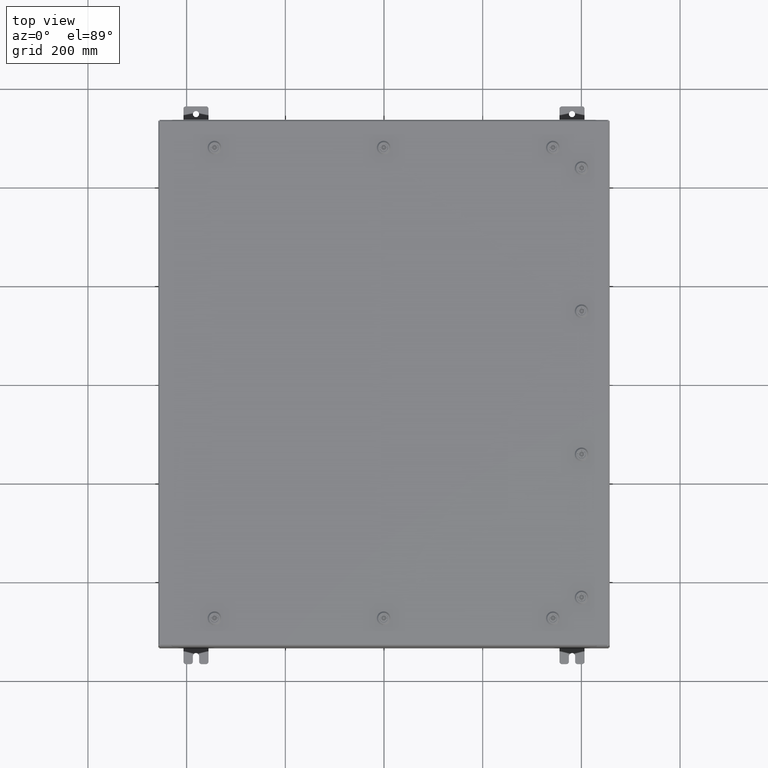
[diagram: clean part render]
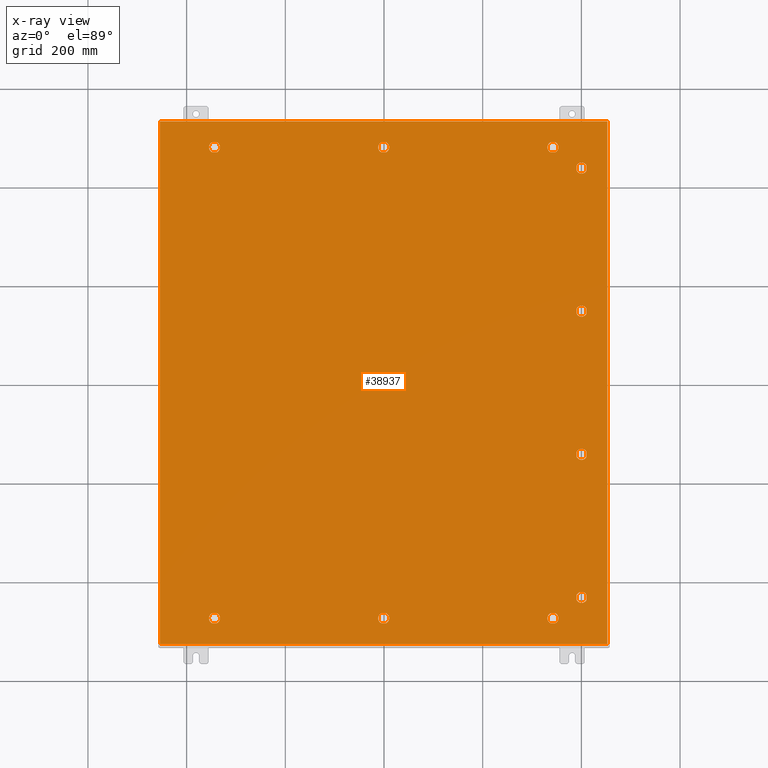
[diagram: x-ray — body ghosted, one internal face saturated and labeled with its STEP entity id]
A machine part, top view, then the same camera in x-ray: the body is ghosted and one INTERNAL B-rep face — a face not visible from any outside direction — is saturated and labeled: STEP entity #38937.
In plain terms, the highlighted planar face has unit normal (0, 0, -1).
Its self-contained STEP definition (entity closure, byte-faithful):
#66 = LINE ( 'NONE', #26170, #40813 ) ;
#161 = VERTEX_POINT ( 'NONE', #5360 ) ;
#405 = CARTESIAN_POINT ( 'NONE',  ( -13.49999999999998600, -18.78780000000000400, -0.07470000000000003000 ) ) ;
#1058 = EDGE_CURVE ( 'NONE', #16511, #25870, #48146, .T. ) ;
#1070 = EDGE_CURVE ( 'NONE', #35272, #41844, #18265, .T. ) ;
#1144 = CARTESIAN_POINT ( 'NONE',  ( 15.39280000000000800, 5.510047624732132800, -0.07470000000000003000 ) ) ;
#1437 = PLANE ( 'NONE',  #45311 ) ;
#1460 = FACE_BOUND ( 'NONE', #19633, .T. ) ;
#1720 = EDGE_CURVE ( 'NONE', #15057, #55109, #14089, .T. ) ;
#1851 = DIRECTION ( 'NONE',  ( -1.000000000000000000, 2.469467112916857400E-015, 0.0000000000000000000 ) ) ;
#2109 = ORIENTED_EDGE ( 'NONE', *, *, #1070, .T. ) ;
#2178 = VECTOR ( 'NONE', #49123, 39.37007874015748100 ) ;
#2490 = CARTESIAN_POINT ( 'NONE',  ( 15.78780000000000400, -5.710500000000016600, -0.07470000000000003000 ) ) ;
#2506 = DIRECTION ( 'NONE',  ( -1.000000000000000000, 0.0000000000000000000, 0.0000000000000000000 ) ) ;
#2634 = DIRECTION ( 'NONE',  ( -1.000000000000000000, 0.0000000000000000000, 0.0000000000000000000 ) ) ;
#2703 = CARTESIAN_POINT ( 'NONE',  ( -0.1994523752678657700, 19.18279999999999300, -0.07470000000000003000 ) ) ;
#2860 = DIRECTION ( 'NONE',  ( -0.0000000000000000000, -0.0000000000000000000, 1.000000000000000000 ) ) ;
#3018 = EDGE_CURVE ( 'NONE', #9223, #26105, #62154, .T. ) ;
#3052 = ORIENTED_EDGE ( 'NONE', *, *, #64039, .T. ) ;
#3156 = FACE_BOUND ( 'NONE', #57944, .T. ) ;
#3200 = CARTESIAN_POINT ( 'NONE',  ( 13.69945237526786900, 18.39280000000000500, -0.07470000000000003000 ) ) ;
#3204 = VECTOR ( 'NONE', #19536, 39.37007874015748100 ) ;
#3264 = DIRECTION ( 'NONE',  ( 0.0000000000000000000, -1.000000000000000000, 0.0000000000000000000 ) ) ;
#3603 = VECTOR ( 'NONE', #55057, 39.37007874015748100 ) ;
#3642 = CARTESIAN_POINT ( 'NONE',  ( 15.78780000000000400, -17.13050000000001900, -0.07470000000000003000 ) ) ;
#3845 = LINE ( 'NONE', #38474, #2178 ) ;
#4051 = VECTOR ( 'NONE', #66844, 39.37007874015748100 ) ;
#4252 = EDGE_CURVE ( 'NONE', #61828, #33292, #66209, .T. ) ;
#4639 = DIRECTION ( 'NONE',  ( -0.0000000000000000000, -0.0000000000000000000, 1.000000000000000000 ) ) ;
#4670 = EDGE_CURVE ( 'NONE', #34189, #38548, #26702, .T. ) ;
#5013 = EDGE_LOOP ( 'NONE', ( #26809, #65879, #44475, #34656 ) ) ;
#5360 = CARTESIAN_POINT ( 'NONE',  ( 13.69945237526786700, 19.18279999999999700, -0.07470000000000003000 ) ) ;
#5600 = LINE ( 'NONE', #35862, #44606 ) ;
#5649 = EDGE_LOOP ( 'NONE', ( #28143, #27360, #38695, #23363 ) ) ;
#5790 = VECTOR ( 'NONE', #11113, 39.37007874015748100 ) ;
#5804 = DIRECTION ( 'NONE',  ( -1.000000000000000000, 0.0000000000000000000, 0.0000000000000000000 ) ) ;
#6293 = CARTESIAN_POINT ( 'NONE',  ( 16.18280000000000000, 16.93004762473213300, -0.07470000000000003000 ) ) ;
#6340 = ORIENTED_EDGE ( 'NONE', *, *, #48176, .T. ) ;
#6526 = ORIENTED_EDGE ( 'NONE', *, *, #53477, .T. ) ;
#6733 = LINE ( 'NONE', #20981, #47363 ) ;
#6754 = ORIENTED_EDGE ( 'NONE', *, *, #57672, .T. ) ;
#6817 = AXIS2_PLACEMENT_3D ( 'NONE', #40649, #8861, #45978 ) ;
#7373 = DIRECTION ( 'NONE',  ( -1.000000000000000000, 0.0000000000000000000, 0.0000000000000000000 ) ) ;
#7436 = CARTESIAN_POINT ( 'NONE',  ( -17.84980000000000200, -20.84980000000000500, -0.07469999999999804600 ) ) ;
#7461 = VERTEX_POINT ( 'NONE', #25992 ) ;
#7508 = LINE ( 'NONE', #56351, #18263 ) ;
#7807 = DIRECTION ( 'NONE',  ( -1.000000000000000000, 0.0000000000000000000, 0.0000000000000000000 ) ) ;
#7835 = ORIENTED_EDGE ( 'NONE', *, *, #37904, .T. ) ;
#7992 = AXIS2_PLACEMENT_3D ( 'NONE', #51718, #19958, #57063 ) ;
#7999 = EDGE_LOOP ( 'NONE', ( #56794, #63628, #6526, #67259, #49542 ) ) ;
#8388 = EDGE_CURVE ( 'NONE', #28071, #32484, #42237, .T. ) ;
#8718 = DIRECTION ( 'NONE',  ( 1.095739467627838000E-014, -1.000000000000000000, 0.0000000000000000000 ) ) ;
#8861 = DIRECTION ( 'NONE',  ( -0.0000000000000000000, -0.0000000000000000000, 1.000000000000000000 ) ) ;
#8959 = DIRECTION ( 'NONE',  ( -1.000000000000000000, 0.0000000000000000000, 0.0000000000000000000 ) ) ;
#9223 = VERTEX_POINT ( 'NONE', #18270 ) ;
#9495 = CARTESIAN_POINT ( 'NONE',  ( 16.18280000000000000, -17.32995237526790400, -0.07470000000000003000 ) ) ;
#9794 = EDGE_CURVE ( 'NONE', #68741, #20518, #37967, .T. ) ;
#10039 = EDGE_CURVE ( 'NONE', #60354, #33053, #43781, .T. ) ;
#10676 = ORIENTED_EDGE ( 'NONE', *, *, #38243, .T. ) ;
#10846 = CARTESIAN_POINT ( 'NONE',  ( 0.4425000000000126100, -18.78779999999999700, -0.07470000000000003000 ) ) ;
#11113 = DIRECTION ( 'NONE',  ( -1.000000000000000000, 0.0000000000000000000, 0.0000000000000000000 ) ) ;
#11150 = CARTESIAN_POINT ( 'NONE',  ( -0.1994523752678689600, 18.39280000000000100, -0.07470000000000003000 ) ) ;
#11406 = VECTOR ( 'NONE', #49795, 39.37007874015748100 ) ;
#11537 = DIRECTION ( 'NONE',  ( -0.0000000000000000000, -0.0000000000000000000, 1.000000000000000000 ) ) ;
#12314 = DIRECTION ( 'NONE',  ( 1.000000000000000000, -0.0000000000000000000, -0.0000000000000000000 ) ) ;
#12603 = AXIS2_PLACEMENT_3D ( 'NONE', #66176, #34382, #2634 ) ;
#12692 = CARTESIAN_POINT ( 'NONE',  ( 0.1994523752678995500, 18.39280000000000100, -0.07470000000000003000 ) ) ;
#12697 = CARTESIAN_POINT ( 'NONE',  ( 13.94249999999998300, 18.78780000000000100, -0.07470000000000003000 ) ) ;
#12916 = CARTESIAN_POINT ( 'NONE',  ( 15.39280000000001200, -5.909952375267908000, -0.07470000000000000300 ) ) ;
#12958 = CARTESIAN_POINT ( 'NONE',  ( 13.94249999999998500, -18.78780000000000100, -0.07470000000000003000 ) ) ;
#13171 = CARTESIAN_POINT ( 'NONE',  ( 16.18280000000000000, -5.511047624732134100, -0.07470000000000003000 ) ) ;
#13567 = EDGE_LOOP ( 'NONE', ( #6754, #50351, #51552, #42860, #31877 ) ) ;
#13720 = CARTESIAN_POINT ( 'NONE',  ( -13.49999999999998600, -18.78780000000000400, -0.07470000000000003000 ) ) ;
#14043 = LINE ( 'NONE', #49445, #67169 ) ;
#14089 = LINE ( 'NONE', #7436, #26515 ) ;
#14210 = CIRCLE ( 'NONE', #38345, 0.4424999999999973400 ) ;
#14299 = EDGE_CURVE ( 'NONE', #47887, #67637, #30196, .T. ) ;
#14702 = CARTESIAN_POINT ( 'NONE',  ( -0.1994523752678657700, -19.18279999999999300, -0.07470000000000003000 ) ) ;
#15035 = CARTESIAN_POINT ( 'NONE',  ( 0.4425000000000126100, 18.78779999999999700, -0.07470000000000003000 ) ) ;
#15057 = VERTEX_POINT ( 'NONE', #63403 ) ;
#15262 = VERTEX_POINT ( 'NONE', #43936 ) ;
#15269 = DIRECTION ( 'NONE',  ( -0.0000000000000000000, -0.0000000000000000000, 1.000000000000000000 ) ) ;
#15373 = VECTOR ( 'NONE', #64178, 39.37007874015748100 ) ;
#15424 = ORIENTED_EDGE ( 'NONE', *, *, #24853, .T. ) ;
#15546 = FACE_BOUND ( 'NONE', #38149, .T. ) ;
#15747 = ORIENTED_EDGE ( 'NONE', *, *, #9794, .T. ) ;
#15882 = CARTESIAN_POINT ( 'NONE',  ( 17.84979999999999500, 20.84980000000000200, -0.07470000000000000300 ) ) ;
#15960 = CIRCLE ( 'NONE', #55651, 0.4424999999999983400 ) ;
#16007 = LINE ( 'NONE', #23061, #3603 ) ;
#16301 = CARTESIAN_POINT ( 'NONE',  ( -13.49999999999998600, -18.78780000000000400, -0.07470000000000003000 ) ) ;
#16511 = VERTEX_POINT ( 'NONE', #43716 ) ;
#16651 = DIRECTION ( 'NONE',  ( -0.0000000000000000000, -0.0000000000000000000, 1.000000000000000000 ) ) ;
#16898 = DIRECTION ( 'NONE',  ( -0.0000000000000000000, -0.0000000000000000000, 1.000000000000000000 ) ) ;
#17136 = DIRECTION ( 'NONE',  ( -5.478697338139220100E-015, 1.000000000000000000, 0.0000000000000000000 ) ) ;
#17246 = FACE_BOUND ( 'NONE', #24957, .T. ) ;
#17348 = VECTOR ( 'NONE', #8718, 39.37007874015748100 ) ;
#17456 = DIRECTION ( 'NONE',  ( -1.000000000000000000, 0.0000000000000000000, -0.0000000000000000000 ) ) ;
#17544 = ORIENTED_EDGE ( 'NONE', *, *, #62018, .T. ) ;
#17956 = CIRCLE ( 'NONE', #48938, 0.4424999999999961700 ) ;
#18263 = VECTOR ( 'NONE', #3264, 39.37007874015748100 ) ;
#18265 = CIRCLE ( 'NONE', #20304, 0.4424999999999983400 ) ;
#18270 = CARTESIAN_POINT ( 'NONE',  ( 15.39280000000000800, -5.511047624732134100, -0.07470000000000003000 ) ) ;
#18288 = ORIENTED_EDGE ( 'NONE', *, *, #32300, .T. ) ;
#18391 = AXIS2_PLACEMENT_3D ( 'NONE', #51376, #19597, #56717 ) ;
#18646 = CARTESIAN_POINT ( 'NONE',  ( 15.39280000000000800, -16.93104762473213800, -0.07470000000000003000 ) ) ;
#18711 = VERTEX_POINT ( 'NONE', #67174 ) ;
#18902 = FACE_BOUND ( 'NONE', #5649, .T. ) ;
#19002 = DIRECTION ( 'NONE',  ( -0.0000000000000000000, -0.0000000000000000000, 1.000000000000000000 ) ) ;
#19003 = LINE ( 'NONE', #46068, #17348 ) ;
#19049 = DIRECTION ( 'NONE',  ( -1.000000000000000000, 0.0000000000000000000, 0.0000000000000000000 ) ) ;
#19144 = DIRECTION ( 'NONE',  ( 1.000000000000000000, 0.0000000000000000000, 0.0000000000000000000 ) ) ;
#19350 = EDGE_CURVE ( 'NONE', #43602, #45004, #14210, .T. ) ;
#19485 = VERTEX_POINT ( 'NONE', #57638 ) ;
#19536 = DIRECTION ( 'NONE',  ( -5.478697338139235000E-015, 1.000000000000000000, 0.0000000000000000000 ) ) ;
#19597 = DIRECTION ( 'NONE',  ( -0.0000000000000000000, -0.0000000000000000000, 1.000000000000000000 ) ) ;
#19633 = EDGE_LOOP ( 'NONE', ( #44658, #66395, #2109, #50393, #48912 ) ) ;
#19922 = CARTESIAN_POINT ( 'NONE',  ( 1.529834876451987200E-014, -18.78779999999999700, -0.07470000000000003000 ) ) ;
#19931 = VECTOR ( 'NONE', #29080, 39.37007874015748100 ) ;
#19958 = DIRECTION ( 'NONE',  ( -0.0000000000000000000, -0.0000000000000000000, 1.000000000000000000 ) ) ;
#20067 = EDGE_CURVE ( 'NONE', #62170, #16511, #22473, .T. ) ;
#20304 = AXIS2_PLACEMENT_3D ( 'NONE', #34631, #2860, #39982 ) ;
#20346 = LINE ( 'NONE', #58033, #62699 ) ;
#20377 = CARTESIAN_POINT ( 'NONE',  ( 0.1994523752679067700, 19.18279999999999000, -0.07470000000000003000 ) ) ;
#20518 = VERTEX_POINT ( 'NONE', #29014 ) ;
#20663 = EDGE_CURVE ( 'NONE', #66099, #15057, #7508, .T. ) ;
#20981 = CARTESIAN_POINT ( 'NONE',  ( 13.30054762473210200, 18.39280000000000500, -0.07470000000000003000 ) ) ;
#21239 = CARTESIAN_POINT ( 'NONE',  ( 17.84979999999999500, -20.84980000000000200, -0.07470000000000000300 ) ) ;
#21326 = DIRECTION ( 'NONE',  ( -0.0000000000000000000, -0.0000000000000000000, 1.000000000000000000 ) ) ;
#21352 = LINE ( 'NONE', #65172, #65391 ) ;
#21399 = CIRCLE ( 'NONE', #39847, 0.4424999999999969000 ) ;
#21454 = ORIENTED_EDGE ( 'NONE', *, *, #10039, .T. ) ;
#21652 = DIRECTION ( 'NONE',  ( -1.000000000000000000, 0.0000000000000000000, 0.0000000000000000000 ) ) ;
#21937 = CARTESIAN_POINT ( 'NONE',  ( 16.18280000000000000, -5.909952375267902600, -0.07470000000000003000 ) ) ;
#21996 = EDGE_CURVE ( 'NONE', #39608, #9223, #55531, .T. ) ;
#22029 = ORIENTED_EDGE ( 'NONE', *, *, #4252, .T. ) ;
#22148 = DIRECTION ( 'NONE',  ( -0.0000000000000000000, -0.0000000000000000000, 1.000000000000000000 ) ) ;
#22149 = AXIS2_PLACEMENT_3D ( 'NONE', #43350, #11537, #48632 ) ;
#22201 = EDGE_CURVE ( 'NONE', #36137, #64584, #19003, .T. ) ;
#22236 = CIRCLE ( 'NONE', #7992, 0.4424999999999983400 ) ;
#22473 = CIRCLE ( 'NONE', #46346, 0.4424999999999961700 ) ;
#22482 = CARTESIAN_POINT ( 'NONE',  ( 13.30054762473209400, 19.18279999999999300, -0.07470000000000003000 ) ) ;
#22495 = ORIENTED_EDGE ( 'NONE', *, *, #14299, .T. ) ;
#23061 = CARTESIAN_POINT ( 'NONE',  ( 17.84979999999999500, -20.84980000000000200, -0.07470000000000019700 ) ) ;
#23363 = ORIENTED_EDGE ( 'NONE', *, *, #67341, .T. ) ;
#23852 = VECTOR ( 'NONE', #32310, 39.37007874015748100 ) ;
#23862 = AXIS2_PLACEMENT_3D ( 'NONE', #56723, #24955, #62081 ) ;
#24334 = LINE ( 'NONE', #55124, #65046 ) ;
#24372 = CARTESIAN_POINT ( 'NONE',  ( 15.39280000000001200, -5.909952375267907100, -0.07470000000000003000 ) ) ;
#24553 = EDGE_CURVE ( 'NONE', #38548, #60354, #31410, .T. ) ;
#24825 = CIRCLE ( 'NONE', #50142, 0.4424999999999961700 ) ;
#24853 = EDGE_CURVE ( 'NONE', #54797, #68741, #21399, .T. ) ;
#24955 = DIRECTION ( 'NONE',  ( -0.0000000000000000000, -0.0000000000000000000, 1.000000000000000000 ) ) ;
#24957 = EDGE_LOOP ( 'NONE', ( #17544, #25558, #10676, #22029 ) ) ;
#24973 = CARTESIAN_POINT ( 'NONE',  ( 13.49999999999998600, -18.78780000000000100, -0.07470000000000003000 ) ) ;
#25135 = CARTESIAN_POINT ( 'NONE',  ( -13.69945237526786900, 18.39280000000000100, -0.07470000000000003000 ) ) ;
#25216 = DIRECTION ( 'NONE',  ( -1.095739467627835000E-014, -1.000000000000000000, 0.0000000000000000000 ) ) ;
#25252 = DIRECTION ( 'NONE',  ( -1.000000000000000000, 0.0000000000000000000, 0.0000000000000000000 ) ) ;
#25372 = VECTOR ( 'NONE', #67673, 39.37007874015748100 ) ;
#25558 = ORIENTED_EDGE ( 'NONE', *, *, #53646, .T. ) ;
#25870 = VERTEX_POINT ( 'NONE', #67481 ) ;
#25992 = CARTESIAN_POINT ( 'NONE',  ( 16.18280000000000000, -16.93104762473213400, -0.07470000000000003000 ) ) ;
#26105 = VERTEX_POINT ( 'NONE', #12916 ) ;
#26170 = CARTESIAN_POINT ( 'NONE',  ( -13.30054762473209400, 19.18279999999999000, -0.07470000000000003000 ) ) ;
#26183 = EDGE_CURVE ( 'NONE', #41844, #28633, #64500, .T. ) ;
#26515 = VECTOR ( 'NONE', #12314, 39.37007874015748100 ) ;
#26702 = CIRCLE ( 'NONE', #51097, 0.4424999999999983400 ) ;
#26809 = ORIENTED_EDGE ( 'NONE', *, *, #31315, .F. ) ;
#27360 = ORIENTED_EDGE ( 'NONE', *, *, #3018, .T. ) ;
#27682 = EDGE_CURVE ( 'NONE', #56599, #43602, #43672, .T. ) ;
#27823 = DIRECTION ( 'NONE',  ( -1.000000000000000000, -1.095739467627832000E-014, 0.0000000000000000000 ) ) ;
#27839 = AXIS2_PLACEMENT_3D ( 'NONE', #66051, #34272, #2506 ) ;
#27881 = DIRECTION ( 'NONE',  ( -0.0000000000000000000, -0.0000000000000000000, 1.000000000000000000 ) ) ;
#27996 = EDGE_CURVE ( 'NONE', #45362, #35272, #46124, .T. ) ;
#28071 = VERTEX_POINT ( 'NONE', #56478 ) ;
#28143 = ORIENTED_EDGE ( 'NONE', *, *, #21996, .T. ) ;
#28278 = CARTESIAN_POINT ( 'NONE',  ( -13.05749999999999000, -18.78780000000000400, -0.07470000000000003000 ) ) ;
#28633 = VERTEX_POINT ( 'NONE', #47094 ) ;
#29014 = CARTESIAN_POINT ( 'NONE',  ( 0.1994523752678995500, 18.39280000000000100, -0.07470000000000000300 ) ) ;
#29019 = CARTESIAN_POINT ( 'NONE',  ( 0.1994523752679070700, -19.18279999999999000, -0.07470000000000000300 ) ) ;
#29080 = DIRECTION ( 'NONE',  ( 1.000000000000000000, -1.095739467627832000E-014, 0.0000000000000000000 ) ) ;
#29345 = VERTEX_POINT ( 'NONE', #52048 ) ;
#29377 = CARTESIAN_POINT ( 'NONE',  ( -13.69945237526786700, 19.18279999999999300, -0.07470000000000003000 ) ) ;
#29411 = CARTESIAN_POINT ( 'NONE',  ( 16.18280000000000000, 5.908952375267901400, -0.07470000000000000300 ) ) ;
#29704 = FACE_BOUND ( 'NONE', #37853, .T. ) ;
#29841 = DIRECTION ( 'NONE',  ( -0.0000000000000000000, -0.0000000000000000000, 1.000000000000000000 ) ) ;
#30196 = CIRCLE ( 'NONE', #59488, 0.4424999999999961700 ) ;
#30327 = DIRECTION ( 'NONE',  ( -1.000000000000000000, 0.0000000000000000000, 0.0000000000000000000 ) ) ;
#30411 = VERTEX_POINT ( 'NONE', #49642 ) ;
#30523 = VECTOR ( 'NONE', #27823, 39.37007874015748100 ) ;
#30952 = EDGE_CURVE ( 'NONE', #43919, #18711, #24334, .T. ) ;
#30990 = CARTESIAN_POINT ( 'NONE',  ( 0.1994523752678993800, -18.39280000000000100, -0.07470000000000003000 ) ) ;
#31011 = ORIENTED_EDGE ( 'NONE', *, *, #65154, .T. ) ;
#31123 = ORIENTED_EDGE ( 'NONE', *, *, #4670, .T. ) ;
#31139 = CARTESIAN_POINT ( 'NONE',  ( 13.49999999999998600, -18.78780000000000100, -0.07470000000000003000 ) ) ;
#31315 = EDGE_CURVE ( 'NONE', #55109, #48180, #16007, .T. ) ;
#31410 = LINE ( 'NONE', #66449, #3204 ) ;
#31877 = ORIENTED_EDGE ( 'NONE', *, *, #1058, .T. ) ;
#32230 = VERTEX_POINT ( 'NONE', #29377 ) ;
#32300 = EDGE_CURVE ( 'NONE', #56842, #59063, #42545, .T. ) ;
#32310 = DIRECTION ( 'NONE',  ( -1.095739467627838000E-014, -1.000000000000000000, 0.0000000000000000000 ) ) ;
#32484 = VERTEX_POINT ( 'NONE', #14702 ) ;
#32720 = VERTEX_POINT ( 'NONE', #37186 ) ;
#32923 = CARTESIAN_POINT ( 'NONE',  ( 13.30054762473210400, -18.39280000000000500, -0.07470000000000003000 ) ) ;
#33053 = VERTEX_POINT ( 'NONE', #60771 ) ;
#33113 = VERTEX_POINT ( 'NONE', #12958 ) ;
#33292 = VERTEX_POINT ( 'NONE', #47863 ) ;
#33620 = DIRECTION ( 'NONE',  ( -0.0000000000000000000, -0.0000000000000000000, 1.000000000000000000 ) ) ;
#34123 = VERTEX_POINT ( 'NONE', #6293 ) ;
#34189 = VERTEX_POINT ( 'NONE', #1144 ) ;
#34272 = DIRECTION ( 'NONE',  ( -0.0000000000000000000, -0.0000000000000000000, 1.000000000000000000 ) ) ;
#34382 = DIRECTION ( 'NONE',  ( -0.0000000000000000000, -0.0000000000000000000, 1.000000000000000000 ) ) ;
#34392 = CARTESIAN_POINT ( 'NONE',  ( 13.30054762473209500, -19.18279999999999300, -0.07470000000000003000 ) ) ;
#34631 = CARTESIAN_POINT ( 'NONE',  ( -13.49999999999998600, 18.78779999999999700, -0.07470000000000003000 ) ) ;
#34656 = ORIENTED_EDGE ( 'NONE', *, *, #67030, .F. ) ;
#35129 = EDGE_CURVE ( 'NONE', #64582, #62170, #63897, .T. ) ;
#35272 = VERTEX_POINT ( 'NONE', #65779 ) ;
#35392 = EDGE_LOOP ( 'NONE', ( #31123, #52009, #21454, #43249 ) ) ;
#35862 = CARTESIAN_POINT ( 'NONE',  ( 16.18280000000000000, -17.32995237526790400, -0.07470000000000003000 ) ) ;
#36137 = VERTEX_POINT ( 'NONE', #18646 ) ;
#36146 = VECTOR ( 'NONE', #25216, 39.37007874015748100 ) ;
#36399 = CARTESIAN_POINT ( 'NONE',  ( 15.78780000000000400, -17.13050000000001900, -0.07470000000000003000 ) ) ;
#36444 = DIRECTION ( 'NONE',  ( -1.000000000000000000, 0.0000000000000000000, 0.0000000000000000000 ) ) ;
#36673 = CARTESIAN_POINT ( 'NONE',  ( 13.30054762473209400, 19.18279999999999300, -0.07470000000000000300 ) ) ;
#37120 = EDGE_CURVE ( 'NONE', #59063, #54797, #38001, .T. ) ;
#37186 = CARTESIAN_POINT ( 'NONE',  ( -13.30054762473209500, -19.18279999999999700, -0.07470000000000000300 ) ) ;
#37210 = CIRCLE ( 'NONE', #58092, 0.4424999999999961700 ) ;
#37267 = AXIS2_PLACEMENT_3D ( 'NONE', #53912, #22148, #59277 ) ;
#37563 = DIRECTION ( 'NONE',  ( -0.0000000000000000000, -0.0000000000000000000, 1.000000000000000000 ) ) ;
#37853 = EDGE_LOOP ( 'NONE', ( #51258, #65583, #58647, #60659, #60307 ) ) ;
#37904 = EDGE_CURVE ( 'NONE', #63961, #7461, #5600, .T. ) ;
#37967 = LINE ( 'NONE', #12692, #11406 ) ;
#38001 = LINE ( 'NONE', #20377, #53753 ) ;
#38149 = EDGE_LOOP ( 'NONE', ( #22495, #52713, #31011, #54282, #6340 ) ) ;
#38243 = EDGE_CURVE ( 'NONE', #30411, #61828, #48708, .T. ) ;
#38345 = AXIS2_PLACEMENT_3D ( 'NONE', #19922, #57033, #25252 ) ;
#38474 = CARTESIAN_POINT ( 'NONE',  ( 0.1994523752678995500, -18.39280000000000100, -0.07470000000000003000 ) ) ;
#38548 = VERTEX_POINT ( 'NONE', #66202 ) ;
#38604 = AXIS2_PLACEMENT_3D ( 'NONE', #16301, #53404, #21652 ) ;
#38695 = ORIENTED_EDGE ( 'NONE', *, *, #62503, .T. ) ;
#38937 = ADVANCED_FACE ( 'NONE', ( #18902, #3156, #45473, #17246, #57905, #43829, #29704, #15546, #1460, #56238, #42154 ), #1437, .T. ) ;
#39265 = AXIS2_PLACEMENT_3D ( 'NONE', #61632, #29841, #66959 ) ;
#39595 = DIRECTION ( 'NONE',  ( -0.0000000000000000000, -0.0000000000000000000, 1.000000000000000000 ) ) ;
#39608 = VERTEX_POINT ( 'NONE', #13171 ) ;
#39847 = AXIS2_PLACEMENT_3D ( 'NONE', #59664, #27881, #65009 ) ;
#39982 = DIRECTION ( 'NONE',  ( -1.000000000000000000, 0.0000000000000000000, 0.0000000000000000000 ) ) ;
#40021 = AXIS2_PLACEMENT_3D ( 'NONE', #405, #37563, #5804 ) ;
#40649 = CARTESIAN_POINT ( 'NONE',  ( -13.49999999999998600, 18.78779999999999700, -0.07470000000000003000 ) ) ;
#40754 = DIRECTION ( 'NONE',  ( -0.0000000000000000000, -0.0000000000000000000, 1.000000000000000000 ) ) ;
#40813 = VECTOR ( 'NONE', #68875, 39.37007874015748100 ) ;
#41100 = EDGE_LOOP ( 'NONE', ( #15424, #15747, #59450, #18288, #41653 ) ) ;
#41576 = EDGE_CURVE ( 'NONE', #15262, #32720, #20346, .T. ) ;
#41653 = ORIENTED_EDGE ( 'NONE', *, *, #37120, .T. ) ;
#41755 = DIRECTION ( 'NONE',  ( -1.000000000000000000, 0.0000000000000000000, 0.0000000000000000000 ) ) ;
#41844 = VERTEX_POINT ( 'NONE', #65136 ) ;
#42154 = FACE_OUTER_BOUND ( 'NONE', #5013, .T. ) ;
#42156 = CIRCLE ( 'NONE', #40021, 0.4424999999999961700 ) ;
#42237 = CIRCLE ( 'NONE', #56994, 0.4424999999999969000 ) ;
#42545 = CIRCLE ( 'NONE', #39265, 0.4424999999999973400 ) ;
#42860 = ORIENTED_EDGE ( 'NONE', *, *, #20067, .T. ) ;
#43249 = ORIENTED_EDGE ( 'NONE', *, *, #67076, .T. ) ;
#43350 = CARTESIAN_POINT ( 'NONE',  ( 1.529834876451987200E-014, -18.78779999999999700, -0.07470000000000003000 ) ) ;
#43449 = EDGE_CURVE ( 'NONE', #32230, #45362, #45138, .T. ) ;
#43602 = VERTEX_POINT ( 'NONE', #10846 ) ;
#43672 = CIRCLE ( 'NONE', #22149, 0.4424999999999973400 ) ;
#43716 = CARTESIAN_POINT ( 'NONE',  ( 13.30054762473209500, -19.18279999999999300, -0.07470000000000003000 ) ) ;
#43781 = CIRCLE ( 'NONE', #18391, 0.4424999999999983400 ) ;
#43795 = AXIS2_PLACEMENT_3D ( 'NONE', #24973, #62103, #30327 ) ;
#43829 = FACE_BOUND ( 'NONE', #7999, .T. ) ;
#43919 = VERTEX_POINT ( 'NONE', #49798 ) ;
#43936 = CARTESIAN_POINT ( 'NONE',  ( -13.69945237526786900, -19.18280000000000000, -0.07470000000000003000 ) ) ;
#44475 = ORIENTED_EDGE ( 'NONE', *, *, #20663, .F. ) ;
#44606 = VECTOR ( 'NONE', #51835, 39.37007874015748100 ) ;
#44643 = LINE ( 'NONE', #22482, #30523 ) ;
#44658 = ORIENTED_EDGE ( 'NONE', *, *, #43449, .T. ) ;
#44786 = EDGE_CURVE ( 'NONE', #7461, #36137, #50091, .T. ) ;
#45004 = VERTEX_POINT ( 'NONE', #30990 ) ;
#45138 = CIRCLE ( 'NONE', #6817, 0.4424999999999961700 ) ;
#45311 = AXIS2_PLACEMENT_3D ( 'NONE', #64805, #49232, #17456 ) ;
#45362 = VERTEX_POINT ( 'NONE', #25135 ) ;
#45473 = FACE_BOUND ( 'NONE', #35392, .T. ) ;
#45978 = DIRECTION ( 'NONE',  ( -1.000000000000000000, 0.0000000000000000000, 0.0000000000000000000 ) ) ;
#46047 = CARTESIAN_POINT ( 'NONE',  ( 15.39280000000001200, -17.32995237526790800, -0.07470000000000000300 ) ) ;
#46068 = CARTESIAN_POINT ( 'NONE',  ( 15.39280000000001200, -17.32995237526790800, -0.07470000000000003000 ) ) ;
#46111 = EDGE_CURVE ( 'NONE', #33113, #64582, #64993, .T. ) ;
#46124 = LINE ( 'NONE', #66945, #61907 ) ;
#46346 = AXIS2_PLACEMENT_3D ( 'NONE', #31139, #68259, #36444 ) ;
#47053 = CARTESIAN_POINT ( 'NONE',  ( 13.49999999999998600, 18.78780000000000100, -0.07470000000000003000 ) ) ;
#47094 = CARTESIAN_POINT ( 'NONE',  ( -13.30054762473209400, 19.18279999999999000, -0.07470000000000003000 ) ) ;
#47363 = VECTOR ( 'NONE', #58350, 39.37007874015748100 ) ;
#47405 = EDGE_CURVE ( 'NONE', #28633, #32230, #66, .T. ) ;
#47752 = VERTEX_POINT ( 'NONE', #28278 ) ;
#47863 = CARTESIAN_POINT ( 'NONE',  ( 15.39280000000000500, 16.93004762473213600, -0.07470000000000003000 ) ) ;
#47887 = VERTEX_POINT ( 'NONE', #3200 ) ;
#48146 = LINE ( 'NONE', #34392, #19931 ) ;
#48176 = EDGE_CURVE ( 'NONE', #29345, #47887, #6733, .T. ) ;
#48180 = VERTEX_POINT ( 'NONE', #15882 ) ;
#48420 = CARTESIAN_POINT ( 'NONE',  ( 1.529834876451987200E-014, -18.78779999999999700, -0.07470000000000003000 ) ) ;
#48632 = DIRECTION ( 'NONE',  ( -1.000000000000000000, 0.0000000000000000000, 0.0000000000000000000 ) ) ;
#48667 = CARTESIAN_POINT ( 'NONE',  ( 13.49999999999998600, -18.78780000000000100, -0.07470000000000003000 ) ) ;
#48708 = CIRCLE ( 'NONE', #37267, 0.4424999999999961700 ) ;
#48912 = ORIENTED_EDGE ( 'NONE', *, *, #47405, .T. ) ;
#48938 = AXIS2_PLACEMENT_3D ( 'NONE', #13720, #50822, #19049 ) ;
#49056 = AXIS2_PLACEMENT_3D ( 'NONE', #3642, #40754, #8959 ) ;
#49123 = DIRECTION ( 'NONE',  ( -1.000000000000000000, 0.0000000000000000000, 0.0000000000000000000 ) ) ;
#49232 = DIRECTION ( 'NONE',  ( 0.0000000000000000000, 0.0000000000000000000, -1.000000000000000000 ) ) ;
#49445 = CARTESIAN_POINT ( 'NONE',  ( 0.1994523752679067700, -19.18279999999999000, -0.07470000000000003000 ) ) ;
#49542 = ORIENTED_EDGE ( 'NONE', *, *, #30952, .T. ) ;
#49642 = CARTESIAN_POINT ( 'NONE',  ( 16.18279999999999700, 17.32895237526790300, -0.07470000000000000300 ) ) ;
#49795 = DIRECTION ( 'NONE',  ( 1.000000000000000000, 0.0000000000000000000, 0.0000000000000000000 ) ) ;
#49798 = CARTESIAN_POINT ( 'NONE',  ( -13.30054762473210400, -18.39280000000000800, -0.07470000000000003000 ) ) ;
#50091 = CIRCLE ( 'NONE', #49056, 0.4424999999999983400 ) ;
#50142 = AXIS2_PLACEMENT_3D ( 'NONE', #53091, #21326, #58440 ) ;
#50181 = EDGE_CURVE ( 'NONE', #32484, #56599, #14043, .T. ) ;
#50351 = ORIENTED_EDGE ( 'NONE', *, *, #46111, .T. ) ;
#50390 = AXIS2_PLACEMENT_3D ( 'NONE', #2490, #39595, #7807 ) ;
#50393 = ORIENTED_EDGE ( 'NONE', *, *, #26183, .T. ) ;
#50773 = CARTESIAN_POINT ( 'NONE',  ( 15.78780000000000100, 17.12950000000001800, -0.07470000000000003000 ) ) ;
#50822 = DIRECTION ( 'NONE',  ( -0.0000000000000000000, -0.0000000000000000000, 1.000000000000000000 ) ) ;
#50940 = EDGE_CURVE ( 'NONE', #18711, #15262, #58920, .T. ) ;
#51097 = AXIS2_PLACEMENT_3D ( 'NONE', #65413, #33620, #1851 ) ;
#51226 = ORIENTED_EDGE ( 'NONE', *, *, #44786, .T. ) ;
#51258 = ORIENTED_EDGE ( 'NONE', *, *, #8388, .T. ) ;
#51376 = CARTESIAN_POINT ( 'NONE',  ( 15.78780000000000400, 5.709500000000015300, -0.07470000000000003000 ) ) ;
#51552 = ORIENTED_EDGE ( 'NONE', *, *, #35129, .T. ) ;
#51702 = EDGE_CURVE ( 'NONE', #67637, #161, #24825, .T. ) ;
#51718 = CARTESIAN_POINT ( 'NONE',  ( 13.49999999999998600, 18.78780000000000100, -0.07470000000000003000 ) ) ;
#51835 = DIRECTION ( 'NONE',  ( 5.478697338139220100E-015, 1.000000000000000000, 0.0000000000000000000 ) ) ;
#52009 = ORIENTED_EDGE ( 'NONE', *, *, #24553, .T. ) ;
#52048 = CARTESIAN_POINT ( 'NONE',  ( 13.30054762473210200, 18.39280000000000500, -0.07470000000000003000 ) ) ;
#52243 = CIRCLE ( 'NONE', #27839, 0.4424999999999983400 ) ;
#52379 = DIRECTION ( 'NONE',  ( -1.000000000000000000, 0.0000000000000000000, 0.0000000000000000000 ) ) ;
#52713 = ORIENTED_EDGE ( 'NONE', *, *, #51702, .T. ) ;
#53091 = CARTESIAN_POINT ( 'NONE',  ( 13.49999999999998600, 18.78780000000000100, -0.07470000000000003000 ) ) ;
#53217 = EDGE_CURVE ( 'NONE', #68651, #29345, #22236, .T. ) ;
#53404 = DIRECTION ( 'NONE',  ( -0.0000000000000000000, -0.0000000000000000000, 1.000000000000000000 ) ) ;
#53477 = EDGE_CURVE ( 'NONE', #32720, #47752, #42156, .T. ) ;
#53646 = EDGE_CURVE ( 'NONE', #34123, #30411, #21352, .T. ) ;
#53750 = DIRECTION ( 'NONE',  ( -1.000000000000000000, 0.0000000000000000000, 0.0000000000000000000 ) ) ;
#53753 = VECTOR ( 'NONE', #57500, 39.37007874015748100 ) ;
#53865 = CARTESIAN_POINT ( 'NONE',  ( 0.1994523752679069900, 19.18279999999999000, -0.07470000000000003000 ) ) ;
#53912 = CARTESIAN_POINT ( 'NONE',  ( 15.78780000000000100, 17.12950000000001800, -0.07470000000000003000 ) ) ;
#53999 = DIRECTION ( 'NONE',  ( -1.000000000000000000, 0.0000000000000000000, 0.0000000000000000000 ) ) ;
#54100 = ORIENTED_EDGE ( 'NONE', *, *, #22201, .T. ) ;
#54282 = ORIENTED_EDGE ( 'NONE', *, *, #53217, .T. ) ;
#54330 = DIRECTION ( 'NONE',  ( 1.000000000000000000, 1.095739467627836300E-014, 0.0000000000000000000 ) ) ;
#54797 = VERTEX_POINT ( 'NONE', #2703 ) ;
#54827 = EDGE_CURVE ( 'NONE', #47752, #43919, #17956, .T. ) ;
#55057 = DIRECTION ( 'NONE',  ( 0.0000000000000000000, 1.000000000000000000, 0.0000000000000000000 ) ) ;
#55109 = VERTEX_POINT ( 'NONE', #21239 ) ;
#55124 = CARTESIAN_POINT ( 'NONE',  ( -13.30054762473210400, -18.39280000000000800, -0.07470000000000003000 ) ) ;
#55206 = CARTESIAN_POINT ( 'NONE',  ( -17.84979999999999800, 20.84980000000000200, -0.07470000000000000300 ) ) ;
#55531 = CIRCLE ( 'NONE', #50390, 0.4424999999999983400 ) ;
#55651 = AXIS2_PLACEMENT_3D ( 'NONE', #48667, #16898, #53999 ) ;
#56059 = LINE ( 'NONE', #21937, #15373 ) ;
#56131 = EDGE_CURVE ( 'NONE', #20518, #56842, #59402, .T. ) ;
#56238 = FACE_BOUND ( 'NONE', #41100, .T. ) ;
#56351 = CARTESIAN_POINT ( 'NONE',  ( -17.84979999999999800, 20.84980000000000200, -0.07470000000000129300 ) ) ;
#56478 = CARTESIAN_POINT ( 'NONE',  ( -0.1994523752678689600, -18.39280000000000100, -0.07470000000000003000 ) ) ;
#56599 = VERTEX_POINT ( 'NONE', #29019 ) ;
#56717 = DIRECTION ( 'NONE',  ( -1.000000000000000000, 0.0000000000000000000, 0.0000000000000000000 ) ) ;
#56723 = CARTESIAN_POINT ( 'NONE',  ( -13.49999999999998600, 18.78779999999999700, -0.07470000000000003000 ) ) ;
#56794 = ORIENTED_EDGE ( 'NONE', *, *, #50940, .T. ) ;
#56842 = VERTEX_POINT ( 'NONE', #15035 ) ;
#56994 = AXIS2_PLACEMENT_3D ( 'NONE', #48420, #16651, #53750 ) ;
#57033 = DIRECTION ( 'NONE',  ( -0.0000000000000000000, -0.0000000000000000000, 1.000000000000000000 ) ) ;
#57050 = DIRECTION ( 'NONE',  ( -1.000000000000000000, 0.0000000000000000000, 0.0000000000000000000 ) ) ;
#57063 = DIRECTION ( 'NONE',  ( -1.000000000000000000, 0.0000000000000000000, 0.0000000000000000000 ) ) ;
#57500 = DIRECTION ( 'NONE',  ( -1.000000000000000000, 1.095739467627836300E-014, 0.0000000000000000000 ) ) ;
#57638 = CARTESIAN_POINT ( 'NONE',  ( 16.18280000000000000, -5.909952375267902600, -0.07470000000000003000 ) ) ;
#57672 = EDGE_CURVE ( 'NONE', #25870, #33113, #15960, .T. ) ;
#57905 = FACE_BOUND ( 'NONE', #13567, .T. ) ;
#57944 = EDGE_LOOP ( 'NONE', ( #51226, #54100, #3052, #7835 ) ) ;
#58033 = CARTESIAN_POINT ( 'NONE',  ( -13.30054762473209500, -19.18279999999999700, -0.07470000000000003000 ) ) ;
#58092 = AXIS2_PLACEMENT_3D ( 'NONE', #36399, #4639, #41755 ) ;
#58350 = DIRECTION ( 'NONE',  ( 1.000000000000000000, 0.0000000000000000000, 0.0000000000000000000 ) ) ;
#58440 = DIRECTION ( 'NONE',  ( -1.000000000000000000, 0.0000000000000000000, 0.0000000000000000000 ) ) ;
#58647 = ORIENTED_EDGE ( 'NONE', *, *, #27682, .T. ) ;
#58920 = CIRCLE ( 'NONE', #38604, 0.4424999999999983400 ) ;
#58928 = AXIS2_PLACEMENT_3D ( 'NONE', #50773, #19002, #57050 ) ;
#59063 = VERTEX_POINT ( 'NONE', #53865 ) ;
#59277 = DIRECTION ( 'NONE',  ( -1.000000000000000000, 0.0000000000000000000, 0.0000000000000000000 ) ) ;
#59402 = CIRCLE ( 'NONE', #12603, 0.4424999999999973400 ) ;
#59450 = ORIENTED_EDGE ( 'NONE', *, *, #56131, .T. ) ;
#59488 = AXIS2_PLACEMENT_3D ( 'NONE', #47053, #15269, #52379 ) ;
#59664 = CARTESIAN_POINT ( 'NONE',  ( 1.529834876451987200E-014, 18.78779999999999700, -0.07470000000000003000 ) ) ;
#60307 = ORIENTED_EDGE ( 'NONE', *, *, #66872, .T. ) ;
#60336 = CARTESIAN_POINT ( 'NONE',  ( 15.39280000000001000, 17.32895237526790700, -0.07470000000000003000 ) ) ;
#60354 = VERTEX_POINT ( 'NONE', #29411 ) ;
#60659 = ORIENTED_EDGE ( 'NONE', *, *, #19350, .T. ) ;
#60771 = CARTESIAN_POINT ( 'NONE',  ( 15.39280000000001200, 5.908952375267905800, -0.07470000000000003000 ) ) ;
#61632 = CARTESIAN_POINT ( 'NONE',  ( 1.529834876451987200E-014, 18.78779999999999700, -0.07470000000000003000 ) ) ;
#61671 = CARTESIAN_POINT ( 'NONE',  ( 17.84979999999999500, 20.84980000000000500, -0.07469999999999804600 ) ) ;
#61823 = CARTESIAN_POINT ( 'NONE',  ( 13.69945237526787100, -18.39280000000000500, -0.07470000000000003000 ) ) ;
#61828 = VERTEX_POINT ( 'NONE', #60336 ) ;
#61907 = VECTOR ( 'NONE', #19144, 39.37007874015748100 ) ;
#62018 = EDGE_CURVE ( 'NONE', #33292, #34123, #67274, .T. ) ;
#62081 = DIRECTION ( 'NONE',  ( -1.000000000000000000, 0.0000000000000000000, 0.0000000000000000000 ) ) ;
#62103 = DIRECTION ( 'NONE',  ( -0.0000000000000000000, -0.0000000000000000000, 1.000000000000000000 ) ) ;
#62154 = LINE ( 'NONE', #24372, #4051 ) ;
#62170 = VERTEX_POINT ( 'NONE', #63533 ) ;
#62503 = EDGE_CURVE ( 'NONE', #26105, #19485, #52243, .T. ) ;
#62699 = VECTOR ( 'NONE', #63373, 39.37007874015748100 ) ;
#63373 = DIRECTION ( 'NONE',  ( 1.000000000000000000, 1.095739467627832000E-014, 0.0000000000000000000 ) ) ;
#63403 = CARTESIAN_POINT ( 'NONE',  ( -17.84980000000000200, -20.84980000000000200, -0.07470000000000000300 ) ) ;
#63533 = CARTESIAN_POINT ( 'NONE',  ( 13.30054762473210400, -18.39280000000000500, -0.07470000000000000300 ) ) ;
#63628 = ORIENTED_EDGE ( 'NONE', *, *, #41576, .T. ) ;
#63897 = LINE ( 'NONE', #32923, #5790 ) ;
#63961 = VERTEX_POINT ( 'NONE', #9495 ) ;
#64039 = EDGE_CURVE ( 'NONE', #64584, #63961, #37210, .T. ) ;
#64178 = DIRECTION ( 'NONE',  ( 5.478697338139235000E-015, 1.000000000000000000, 0.0000000000000000000 ) ) ;
#64313 = CARTESIAN_POINT ( 'NONE',  ( 15.39280000000001000, 17.32895237526790700, -0.07470000000000003000 ) ) ;
#64411 = LINE ( 'NONE', #67903, #36146 ) ;
#64500 = CIRCLE ( 'NONE', #23862, 0.4424999999999983400 ) ;
#64582 = VERTEX_POINT ( 'NONE', #61823 ) ;
#64584 = VERTEX_POINT ( 'NONE', #46047 ) ;
#64805 = CARTESIAN_POINT ( 'NONE',  ( 0.0000000000000000000, 0.0000000000000000000, -0.07470000000000000300 ) ) ;
#64993 = CIRCLE ( 'NONE', #43795, 0.4424999999999983400 ) ;
#65009 = DIRECTION ( 'NONE',  ( -1.000000000000000000, 0.0000000000000000000, 0.0000000000000000000 ) ) ;
#65046 = VECTOR ( 'NONE', #7373, 39.37007874015748100 ) ;
#65136 = CARTESIAN_POINT ( 'NONE',  ( -13.05749999999998900, 18.78779999999999700, -0.07470000000000003000 ) ) ;
#65154 = EDGE_CURVE ( 'NONE', #161, #68651, #44643, .T. ) ;
#65172 = CARTESIAN_POINT ( 'NONE',  ( 16.18279999999999700, 17.32895237526790300, -0.07470000000000003000 ) ) ;
#65391 = VECTOR ( 'NONE', #17136, 39.37007874015748100 ) ;
#65413 = CARTESIAN_POINT ( 'NONE',  ( 15.78780000000000400, 5.709500000000015300, -0.07470000000000003000 ) ) ;
#65583 = ORIENTED_EDGE ( 'NONE', *, *, #50181, .T. ) ;
#65779 = CARTESIAN_POINT ( 'NONE',  ( -13.30054762473210200, 18.39280000000000100, -0.07470000000000000300 ) ) ;
#65879 = ORIENTED_EDGE ( 'NONE', *, *, #1720, .F. ) ;
#66051 = CARTESIAN_POINT ( 'NONE',  ( 15.78780000000000400, -5.710500000000016600, -0.07470000000000003000 ) ) ;
#66065 = LINE ( 'NONE', #61671, #25372 ) ;
#66099 = VERTEX_POINT ( 'NONE', #55206 ) ;
#66176 = CARTESIAN_POINT ( 'NONE',  ( 1.529834876451987200E-014, 18.78779999999999700, -0.07470000000000003000 ) ) ;
#66202 = CARTESIAN_POINT ( 'NONE',  ( 16.18280000000000000, 5.510047624732132800, -0.07470000000000003000 ) ) ;
#66209 = LINE ( 'NONE', #64313, #23852 ) ;
#66395 = ORIENTED_EDGE ( 'NONE', *, *, #27996, .T. ) ;
#66449 = CARTESIAN_POINT ( 'NONE',  ( 16.18280000000000000, 5.908952375267901400, -0.07470000000000003000 ) ) ;
#66844 = DIRECTION ( 'NONE',  ( 1.095739467627835000E-014, -1.000000000000000000, 0.0000000000000000000 ) ) ;
#66872 = EDGE_CURVE ( 'NONE', #45004, #28071, #3845, .T. ) ;
#66945 = CARTESIAN_POINT ( 'NONE',  ( -13.30054762473210200, 18.39280000000000100, -0.07470000000000003000 ) ) ;
#66959 = DIRECTION ( 'NONE',  ( -1.000000000000000000, 4.938934225833725800E-015, 0.0000000000000000000 ) ) ;
#67030 = EDGE_CURVE ( 'NONE', #48180, #66099, #66065, .T. ) ;
#67076 = EDGE_CURVE ( 'NONE', #33053, #34189, #64411, .T. ) ;
#67169 = VECTOR ( 'NONE', #54330, 39.37007874015748100 ) ;
#67174 = CARTESIAN_POINT ( 'NONE',  ( -13.69945237526787100, -18.39280000000000800, -0.07470000000000003000 ) ) ;
#67259 = ORIENTED_EDGE ( 'NONE', *, *, #54827, .T. ) ;
#67274 = CIRCLE ( 'NONE', #58928, 0.4424999999999983400 ) ;
#67341 = EDGE_CURVE ( 'NONE', #19485, #39608, #56059, .T. ) ;
#67481 = CARTESIAN_POINT ( 'NONE',  ( 13.69945237526786900, -19.18279999999999700, -0.07470000000000003000 ) ) ;
#67637 = VERTEX_POINT ( 'NONE', #12697 ) ;
#67673 = DIRECTION ( 'NONE',  ( -1.000000000000000000, -0.0000000000000000000, -0.0000000000000000000 ) ) ;
#67903 = CARTESIAN_POINT ( 'NONE',  ( 15.39280000000001200, 5.908952375267905800, -0.07470000000000003000 ) ) ;
#68259 = DIRECTION ( 'NONE',  ( -0.0000000000000000000, -0.0000000000000000000, 1.000000000000000000 ) ) ;
#68651 = VERTEX_POINT ( 'NONE', #36673 ) ;
#68741 = VERTEX_POINT ( 'NONE', #11150 ) ;
#68875 = DIRECTION ( 'NONE',  ( -1.000000000000000000, 1.095739467627832000E-014, 0.0000000000000000000 ) ) ;